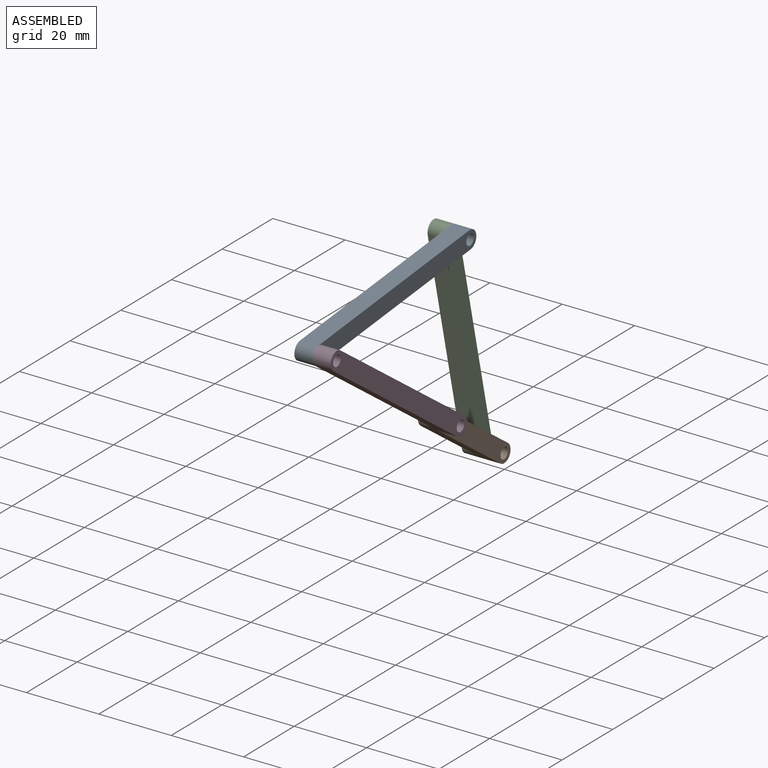
[diagram: assembled view]
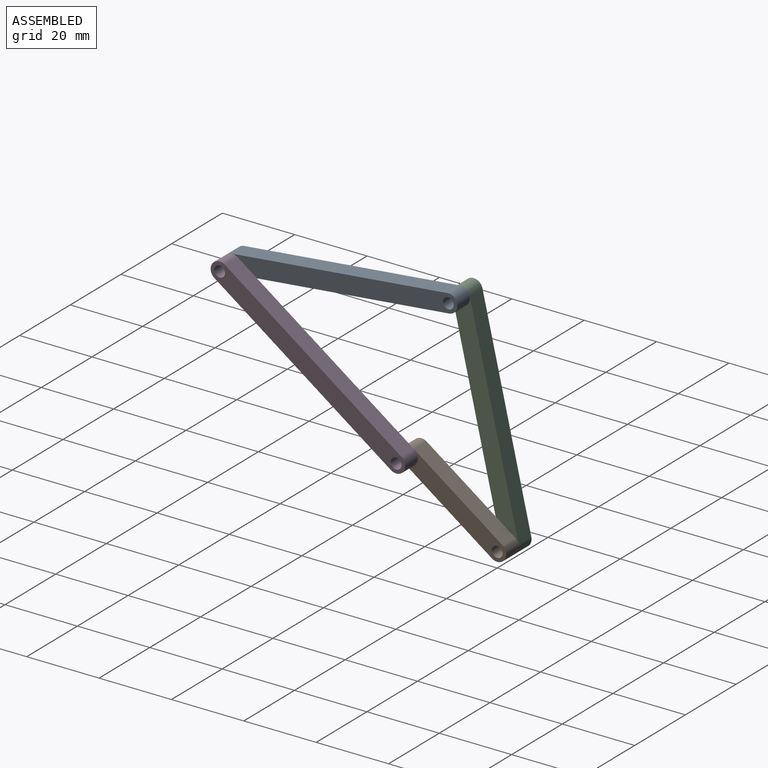
[diagram: assembled view, second angle]
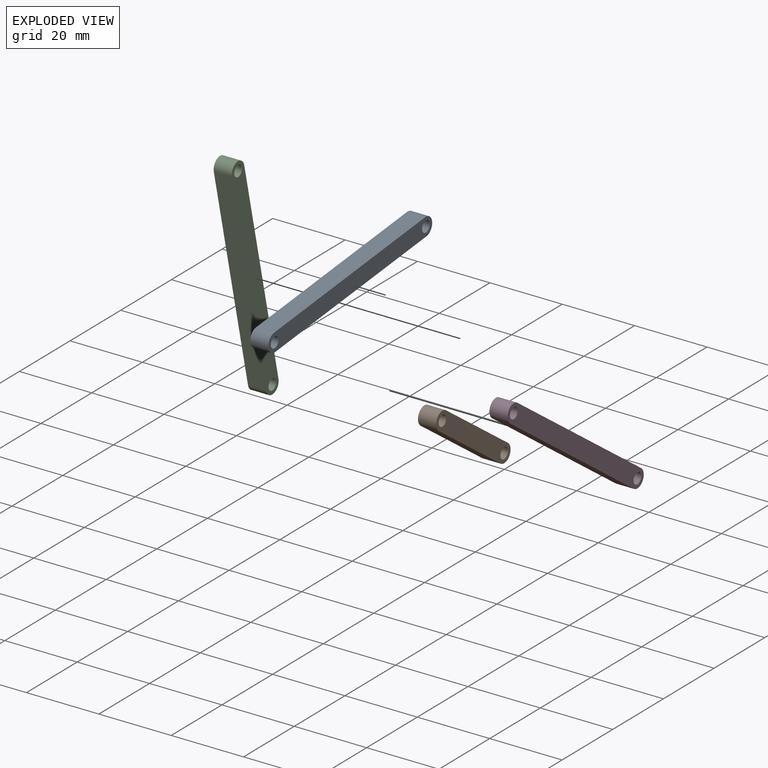
[diagram: exploded view]
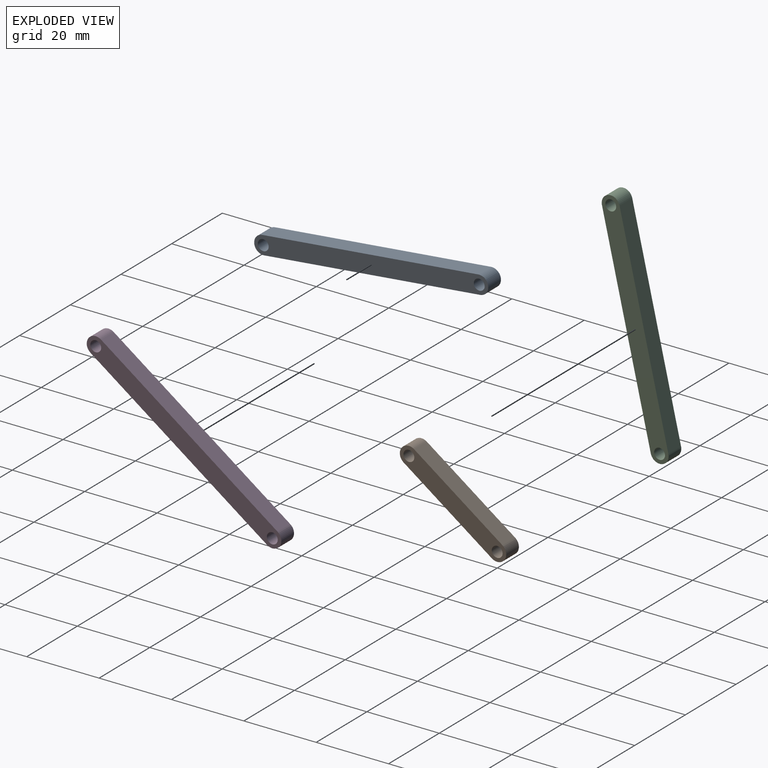
[diagram: exploded view, second angle]
ASSEMBLY  parts=4 mates=4
PART A: 8 faces, bbox 65x5x5 mm
  f0: plane 60x5mm, normal (0,1,0), area 300mm2, adj f1,f3,f6,f7
  f1: cylinder r=2.5mm len=5mm, axis (0,0,-1), area 39.3mm2, adj f0,f2,f6,f7
  f2: plane 60x5mm, normal (0,-1,0), area 300mm2, adj f1,f3,f6,f7
  f3: cylinder r=2.5mm len=5mm, axis (0,0,-1), area 39.3mm2, adj f0,f2,f6,f7
  f4: cylinder r=1.5mm len=5mm, axis (0,0,-1), area 47.1mm2, adj f6,f7
  f5: cylinder r=1.5mm len=5mm, axis (0,0,-1), area 47.1mm2, adj f6,f7
  f6: plane 65x5mm, normal (0,0,1), area 305.5mm2, adj f0,f1,f2,f3,f4,f5
  f7: plane 65x5mm, normal (0,0,-1), area 305.5mm2, adj f0,f1,f2,f3,f4,f5
PART B: 8 faces, bbox 35x5x5 mm
  f0: plane 30x5mm, normal (0,1,0), area 150mm2, adj f1,f3,f6,f7
  f1: cylinder r=2.5mm len=5mm, axis (0,0,-1), area 39.3mm2, adj f0,f2,f6,f7
  f2: plane 30x5mm, normal (0,-1,0), area 150mm2, adj f1,f3,f6,f7
  f3: cylinder r=2.5mm len=5mm, axis (0,0,-1), area 39.3mm2, adj f0,f2,f6,f7
  f4: cylinder r=1.5mm len=5mm, axis (0,0,-1), area 47.1mm2, adj f6,f7
  f5: cylinder r=1.5mm len=5mm, axis (0,0,-1), area 47.1mm2, adj f6,f7
  f6: plane 35x5mm, normal (0,0,1), area 155.5mm2, adj f0,f1,f2,f3,f4,f5
  f7: plane 35x5mm, normal (0,0,-1), area 155.5mm2, adj f0,f1,f2,f3,f4,f5
PART C: same geometry as A
PART D: same geometry as A
PLACE A rot(axis=(0.6,-0.54,-0.6),123.4deg) t=(0,-13.5,58.46)mm
PLACE B rot(axis=(-0.66,0.34,-0.66),142.3deg) t=(-5,0,0)mm
PLACE C rot(axis=(-0.7,-0.08,0.7),170.8deg) t=(-5,-13.5,58.46)mm
PLACE D rot(axis=(-0.66,0.34,-0.66),142.3deg) t=(0,-24.41,17.45)mm
MATE revolute A.f3 <-> D.f4  axis (1,0,0) through (0,-73.19,52.37)mm
MATE revolute D.f5 <-> B.f4  axis (-1,0,0) through (0,-24.41,17.45)mm
MATE revolute A.f5 <-> C.f1  axis (-1,0,0) through (-5,-13.5,58.46)mm
MATE revolute B.f5 <-> C.f3  axis (-1,0,0) through (-5,0,0)mm
